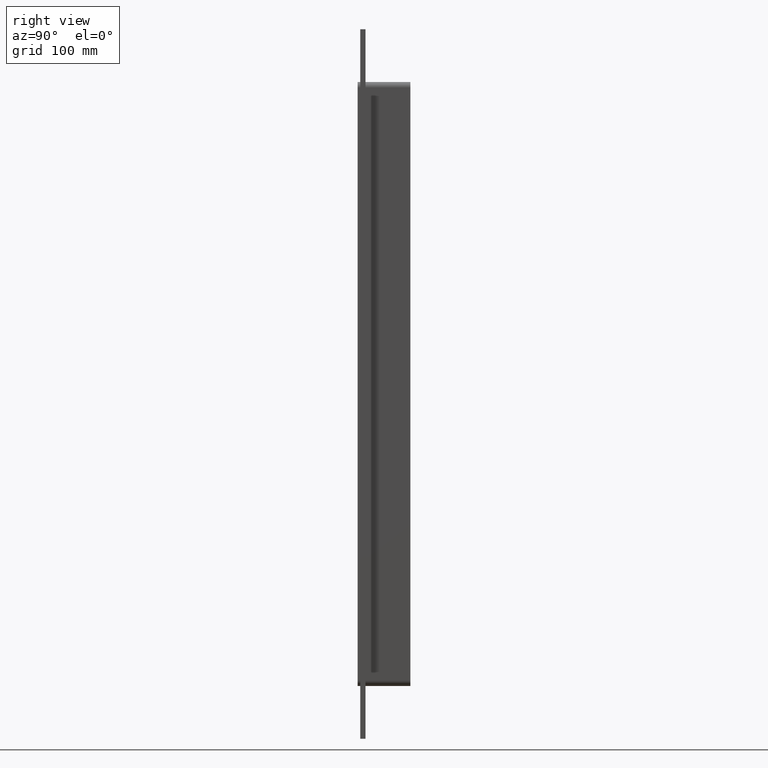
[diagram: clean part render]
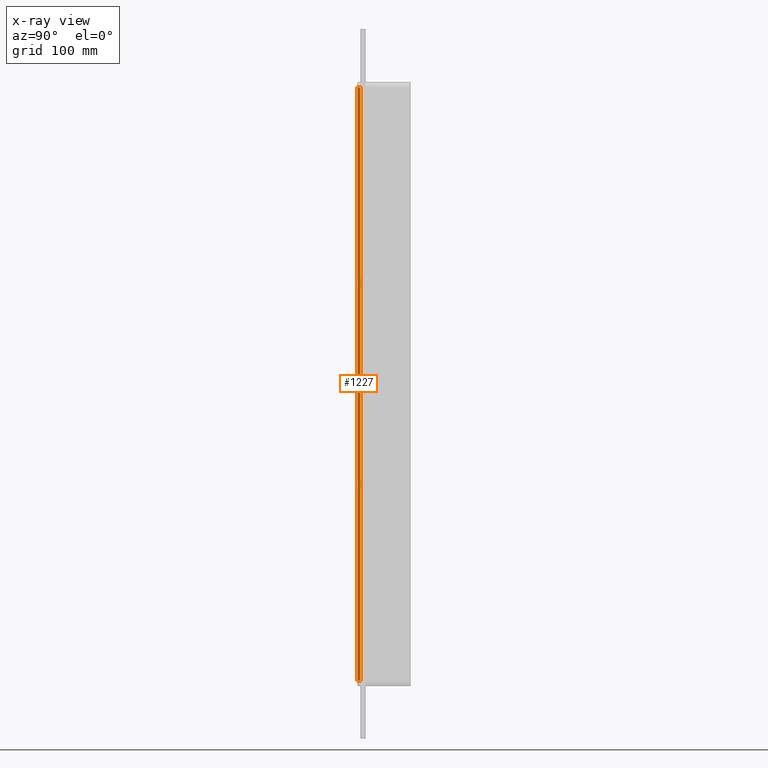
[diagram: x-ray — body ghosted, one internal face saturated and labeled with its STEP entity id]
A machine part, right view, then the same camera in x-ray: the body is ghosted and one INTERNAL B-rep face — a face not visible from any outside direction — is saturated and labeled: STEP entity #1227.
In plain terms, the highlighted planar face has unit normal (1, 0, 0).
Its self-contained STEP definition (entity closure, byte-faithful):
#941=CARTESIAN_POINT('',(36.25,0.0,337.0));
#942=VERTEX_POINT('',#941);
#950=CARTESIAN_POINT('',(36.25,0.0,-337.0));
#951=VERTEX_POINT('',#950);
#952=CARTESIAN_POINT('',(36.25,0.0,-337.00000000000011));
#953=DIRECTION('',(0.0,0.0,1.0));
#954=VECTOR('',#953,674.00000000000011);
#955=LINE('',#952,#954);
#956=EDGE_CURVE('',#951,#942,#955,.T.);
#1098=CARTESIAN_POINT('',(36.25,-3.0,-336.99999999999994));
#1099=VERTEX_POINT('',#1098);
#1100=CARTESIAN_POINT('',(36.25,0.0,-337.0));
#1101=DIRECTION('',(0.0,-1.0,0.0));
#1102=VECTOR('',#1101,3.0);
#1103=LINE('',#1100,#1102);
#1104=EDGE_CURVE('',#951,#1099,#1103,.T.);
#1204=CARTESIAN_POINT('',(36.25,0.0,343.00000000000006));
#1205=DIRECTION('',(1.0,0.0,0.0));
#1206=DIRECTION('',(0.0,0.0,-1.0));
#1207=AXIS2_PLACEMENT_3D('',#1204,#1205,#1206);
#1208=PLANE('',#1207);
#1209=ORIENTED_EDGE('',*,*,#956,.T.);
#1210=CARTESIAN_POINT('',(36.25,-3.0,337.0));
#1211=VERTEX_POINT('',#1210);
#1212=CARTESIAN_POINT('',(36.25,-3.0,337.0));
#1213=DIRECTION('',(0.0,1.0,0.0));
#1214=VECTOR('',#1213,3.0);
#1215=LINE('',#1212,#1214);
#1216=EDGE_CURVE('',#1211,#942,#1215,.T.);
#1217=ORIENTED_EDGE('',*,*,#1216,.F.);
#1218=CARTESIAN_POINT('',(36.25,-3.0,-336.99999999999994));
#1219=DIRECTION('',(0.0,0.0,1.0));
#1220=VECTOR('',#1219,674.0);
#1221=LINE('',#1218,#1220);
#1222=EDGE_CURVE('',#1099,#1211,#1221,.T.);
#1223=ORIENTED_EDGE('',*,*,#1222,.F.);
#1224=ORIENTED_EDGE('',*,*,#1104,.F.);
#1225=EDGE_LOOP('',(#1209,#1217,#1223,#1224));
#1226=FACE_OUTER_BOUND('',#1225,.T.);
#1227=ADVANCED_FACE('',(#1226),#1208,.T.);